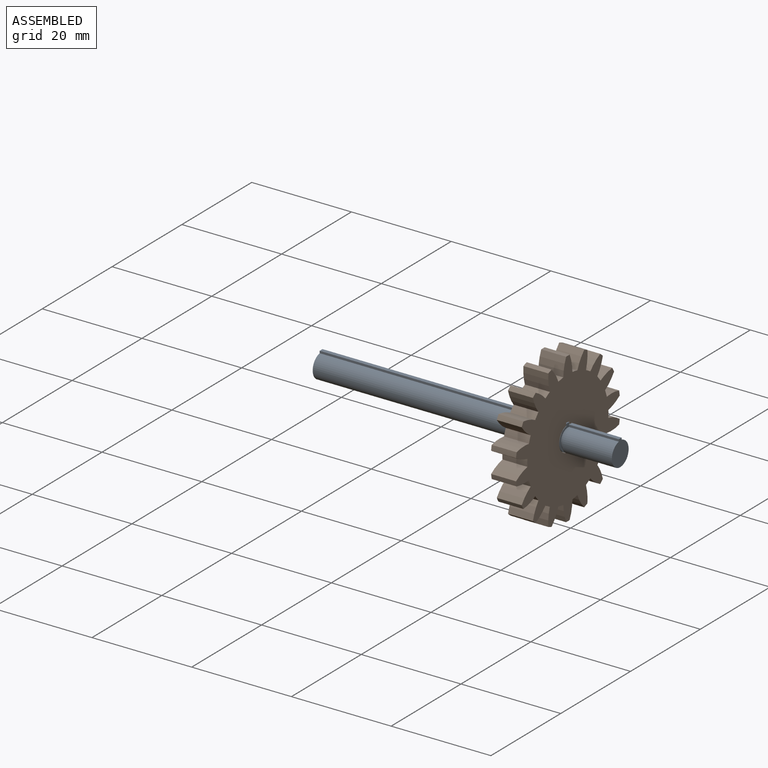
[diagram: assembled view]
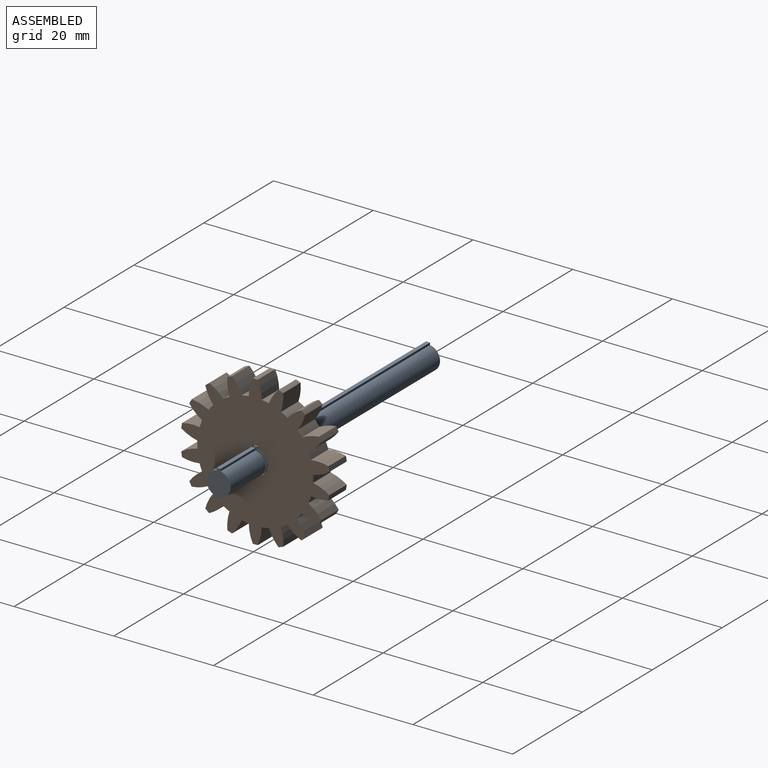
[diagram: assembled view, second angle]
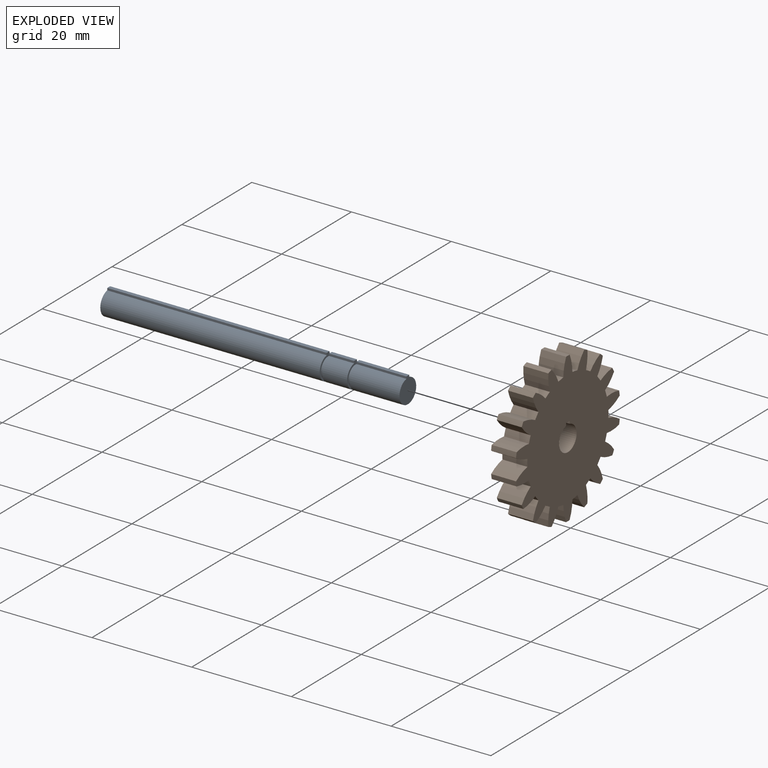
[diagram: exploded view]
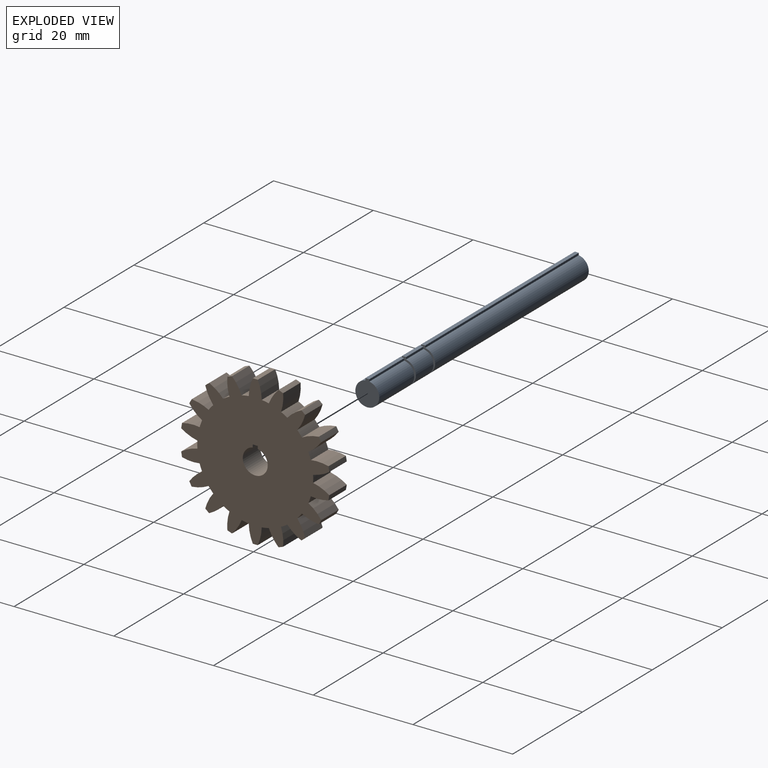
[diagram: exploded view, second angle]
ASSEMBLY  parts=2 mates=3
PART A: 20 faces, bbox 60x4.8x5.2 mm
  f0: cylinder r=2.4mm len=10mm, axis (-1,0,0), area 142.8mm2, adj f1,f2,f3,f6
  f1: plane 5.2x4.8mm, normal (1,0,0), area 18.4mm2, adj f0,f2,f3,f4
  f2: plane 10x0.43mm, normal (0,-1,0), area 4.3mm2, adj f0,f1,f4,f6
  f3: plane 10x0.43mm, normal (0,1,0), area 4.3mm2, adj f0,f1,f4,f6
  f4: plane 10x0.8mm, normal (0,0,1), area 8mm2, adj f1,f2,f3,f6
  f5: plane 5.2x4.8mm, normal (1,0,0), area 5.9mm2, adj f7,f8,f9,f10,f11
  f6: plane 5.2x4.8mm, normal (-1,0,0), area 5.9mm2, adj f0,f2,f3,f4,f7
  f7: cylinder r=2mm len=4mm, axis (-1,0,0), area 6.3mm2, adj f5,f6
  f8: plane 5x0.8mm, normal (0,0,1), area 4mm2, adj f5,f9,f10,f12
  f9: plane 5x0.43mm, normal (0,1,0), area 2.2mm2, adj f5,f8,f11,f12
  f10: plane 5x0.43mm, normal (0,-1,0), area 2.2mm2, adj f5,f8,f11,f12
  f11: cylinder r=2.4mm len=5mm, axis (-1,0,0), area 71.4mm2, adj f5,f9,f10,f12
  f12: plane 5.2x4.8mm, normal (-1,0,0), area 5.9mm2, adj f8,f9,f10,f11,f14
  f13: plane 5.2x4.8mm, normal (1,0,0), area 5.9mm2, adj f14,f16,f17,f18,f19
  f14: cylinder r=2mm len=4mm, axis (-1,0,0), area 6.3mm2, adj f12,f13
  f15: plane 5.2x4.8mm, normal (-1,0,0), area 18.4mm2, adj f16,f17,f18,f19
  f16: plane 44x0.8mm, normal (0,0,1), area 35.2mm2, adj f13,f15,f17,f18
  f17: plane 44x0.43mm, normal (0,1,0), area 19.1mm2, adj f13,f15,f16,f19
  f18: plane 44x0.43mm, normal (0,-1,0), area 19.1mm2, adj f13,f15,f16,f19
  f19: cylinder r=2.4mm len=44mm, axis (-1,0,0), area 628.1mm2, adj f13,f15,f17,f18
PART B: 78 faces, bbox 5x29.7x30 mm
  f0: plane 30x29.7mm, normal (-1,0,0), area 529.2mm2, adj f1,f2,f3,f4,f5,f6,f7,f8
  f1: cylinder r=15mm len=5mm, axis (-1,0,0), area 5mm2, adj f0,f2,f72,f74
  f2: cylinder r=8.62mm len=5mm, axis (-1,0,0), area 17.8mm2, adj f0,f1,f3,f74
  f3: cylinder r=11.62mm len=5mm, axis (-1,0,0), area 7.3mm2, adj f0,f2,f4,f74
  f4: cylinder r=8.62mm len=5mm, axis (-1,0,0), area 17.8mm2, adj f0,f3,f5,f74
  f5: cylinder r=15mm len=5mm, axis (-1,0,0), area 5mm2, adj f0,f4,f6,f74
  f6: cylinder r=8.62mm len=5mm, axis (-1,0,0), area 17.8mm2, adj f0,f5,f7,f74
  f7: cylinder r=11.62mm len=5mm, axis (-1,0,0), area 7.3mm2, adj f0,f6,f8,f74
  f8: cylinder r=8.62mm len=5mm, axis (-1,0,0), area 17.8mm2, adj f0,f7,f9,f74
  f9: cylinder r=15mm len=5mm, axis (-1,0,0), area 5mm2, adj f0,f8,f10,f74
  f10: cylinder r=8.62mm len=5mm, axis (-1,0,0), area 17.8mm2, adj f0,f9,f11,f74
  f11: cylinder r=11.62mm len=5mm, axis (-1,0,0), area 7.3mm2, adj f0,f10,f12,f74
  f12: cylinder r=8.62mm len=5mm, axis (-1,0,0), area 17.8mm2, adj f0,f11,f13,f74
  f13: cylinder r=15mm len=5mm, axis (-1,0,0), area 5mm2, adj f0,f12,f14,f74
  f14: cylinder r=8.62mm len=5mm, axis (-1,0,0), area 17.8mm2, adj f0,f13,f15,f74
  f15: cylinder r=11.62mm len=5mm, axis (-1,0,0), area 7.3mm2, adj f0,f14,f16,f74
  f16: cylinder r=8.62mm len=5mm, axis (-1,0,0), area 17.8mm2, adj f0,f15,f17,f74
  f17: cylinder r=15mm len=5mm, axis (-1,0,0), area 5mm2, adj f0,f16,f18,f74
  f18: cylinder r=8.62mm len=5mm, axis (-1,0,0), area 17.8mm2, adj f0,f17,f19,f74
  f19: cylinder r=11.62mm len=5mm, axis (-1,0,0), area 7.3mm2, adj f0,f18,f20,f74
  f20: cylinder r=8.62mm len=5mm, axis (-1,0,0), area 17.8mm2, adj f0,f19,f21,f74
  f21: cylinder r=15mm len=5mm, axis (-1,0,0), area 5mm2, adj f0,f20,f22,f74
  f22: cylinder r=8.62mm len=5mm, axis (-1,0,0), area 17.8mm2, adj f0,f21,f23,f74
  f23: cylinder r=11.62mm len=5mm, axis (-1,0,0), area 7.3mm2, adj f0,f22,f24,f74
  f24: cylinder r=8.62mm len=5mm, axis (-1,0,0), area 17.8mm2, adj f0,f23,f25,f74
  f25: cylinder r=15mm len=5mm, axis (-1,0,0), area 5mm2, adj f0,f24,f26,f74
  f26: cylinder r=8.62mm len=5mm, axis (-1,0,0), area 17.8mm2, adj f0,f25,f27,f74
  f27: cylinder r=11.62mm len=5mm, axis (-1,0,0), area 7.3mm2, adj f0,f26,f28,f74
  f28: cylinder r=8.62mm len=5mm, axis (-1,0,0), area 17.8mm2, adj f0,f27,f29,f74
  f29: cylinder r=15mm len=5mm, axis (-1,0,0), area 5mm2, adj f0,f28,f30,f74
  f30: cylinder r=8.62mm len=5mm, axis (-1,0,0), area 17.8mm2, adj f0,f29,f31,f74
  f31: cylinder r=11.62mm len=5mm, axis (-1,0,0), area 7.3mm2, adj f0,f30,f32,f74
  f32: cylinder r=8.62mm len=5mm, axis (-1,0,0), area 17.8mm2, adj f0,f31,f33,f74
  f33: cylinder r=15mm len=5mm, axis (-1,0,0), area 5mm2, adj f0,f32,f34,f74
  f34: cylinder r=8.62mm len=5mm, axis (-1,0,0), area 17.8mm2, adj f0,f33,f35,f74
  f35: cylinder r=11.62mm len=5mm, axis (-1,0,0), area 7.3mm2, adj f0,f34,f36,f74
  f36: cylinder r=8.62mm len=5mm, axis (-1,0,0), area 17.8mm2, adj f0,f35,f37,f74
  f37: cylinder r=15mm len=5mm, axis (-1,0,0), area 5mm2, adj f0,f36,f38,f74
  f38: cylinder r=8.62mm len=5mm, axis (-1,0,0), area 17.8mm2, adj f0,f37,f39,f74
  f39: cylinder r=11.62mm len=5mm, axis (-1,0,0), area 7.3mm2, adj f0,f38,f40,f74
  f40: cylinder r=8.62mm len=5mm, axis (-1,0,0), area 17.8mm2, adj f0,f39,f41,f74
  f41: cylinder r=15mm len=5mm, axis (-1,0,0), area 5mm2, adj f0,f40,f42,f74
  f42: cylinder r=8.62mm len=5mm, axis (-1,0,0), area 17.8mm2, adj f0,f41,f43,f74
  f43: cylinder r=11.62mm len=5mm, axis (-1,0,0), area 7.3mm2, adj f0,f42,f44,f74
  f44: cylinder r=8.62mm len=5mm, axis (-1,0,0), area 17.8mm2, adj f0,f43,f45,f74
  f45: cylinder r=15mm len=5mm, axis (-1,0,0), area 5mm2, adj f0,f44,f46,f74
  f46: cylinder r=8.62mm len=5mm, axis (-1,0,0), area 17.8mm2, adj f0,f45,f47,f74
  f47: cylinder r=11.62mm len=5mm, axis (-1,0,0), area 7.3mm2, adj f0,f46,f48,f74
  f48: cylinder r=8.62mm len=5mm, axis (-1,0,0), area 17.8mm2, adj f0,f47,f49,f74
  f49: cylinder r=15mm len=5mm, axis (-1,0,0), area 5mm2, adj f0,f48,f50,f74
  f50: cylinder r=8.62mm len=5mm, axis (-1,0,0), area 17.8mm2, adj f0,f49,f51,f74
  f51: cylinder r=11.62mm len=5mm, axis (-1,0,0), area 7.3mm2, adj f0,f50,f52,f74
  f52: cylinder r=8.62mm len=5mm, axis (-1,0,0), area 17.8mm2, adj f0,f51,f53,f74
  f53: cylinder r=15mm len=5mm, axis (-1,0,0), area 5mm2, adj f0,f52,f54,f74
  f54: cylinder r=8.62mm len=5mm, axis (-1,0,0), area 17.8mm2, adj f0,f53,f55,f74
  f55: cylinder r=11.62mm len=5mm, axis (-1,0,0), area 7.3mm2, adj f0,f54,f56,f74
  f56: cylinder r=8.62mm len=5mm, axis (-1,0,0), area 17.8mm2, adj f0,f55,f57,f74
  f57: cylinder r=15mm len=5mm, axis (-1,0,0), area 5mm2, adj f0,f56,f58,f74
  f58: cylinder r=8.62mm len=5mm, axis (-1,0,0), area 17.8mm2, adj f0,f57,f59,f74
  f59: cylinder r=11.62mm len=5mm, axis (-1,0,0), area 7.3mm2, adj f0,f58,f60,f74
  f60: cylinder r=8.62mm len=5mm, axis (-1,0,0), area 17.8mm2, adj f0,f59,f61,f74
  f61: cylinder r=15mm len=5mm, axis (-1,0,0), area 5mm2, adj f0,f60,f62,f74
  f62: cylinder r=8.62mm len=5mm, axis (-1,0,0), area 17.8mm2, adj f0,f61,f63,f74
  f63: cylinder r=11.62mm len=5mm, axis (-1,0,0), area 7.3mm2, adj f0,f62,f64,f74
  f64: cylinder r=8.62mm len=5mm, axis (-1,0,0), area 17.8mm2, adj f0,f63,f65,f74
  f65: cylinder r=15mm len=5mm, axis (-1,0,0), area 5mm2, adj f0,f64,f66,f74
  f66: cylinder r=8.62mm len=5mm, axis (-1,0,0), area 17.8mm2, adj f0,f65,f67,f74
  f67: cylinder r=11.62mm len=5mm, axis (-1,0,0), area 7.3mm2, adj f0,f66,f68,f74
  f68: cylinder r=8.62mm len=5mm, axis (-1,0,0), area 17.8mm2, adj f0,f67,f69,f74
  f69: cylinder r=15mm len=5mm, axis (-1,0,0), area 5mm2, adj f0,f68,f70,f74
  f70: cylinder r=8.62mm len=5mm, axis (-1,0,0), area 17.8mm2, adj f0,f69,f71,f74
  f71: cylinder r=11.62mm len=5mm, axis (-1,0,0), area 7.3mm2, adj f0,f70,f72,f74
  f72: cylinder r=8.62mm len=5mm, axis (-1,0,0), area 17.8mm2, adj f0,f1,f71,f74
  f73: cylinder r=2.5mm len=5mm, axis (-1,0,0), area 73.5mm2, adj f0,f74,f76,f77
  f74: plane 30x29.7mm, normal (1,0,0), area 529.2mm2, adj f1,f2,f3,f4,f5,f6,f7,f8
  f75: plane 5x1mm, normal (0,0,-1), area 5mm2, adj f0,f74,f76,f77
  f76: plane 5x0.55mm, normal (0,-1,0), area 2.8mm2, adj f0,f73,f74,f75
  f77: plane 5x0.55mm, normal (0,1,0), area 2.8mm2, adj f0,f73,f74,f75
PLACE A t=(-30.05,-0.02,-0.18)mm fixed
PLACE B t=(14.45,-0.02,-0.18)mm
MATE cylindrical B.f71 <-> A.f0  axis (1,0,0) through (19.45,-0.02,-0.18)mm
MATE planar B.f37 <-> A.f5  axis (1,0,0) through (19.45,-0.02,-0.18)mm
MATE parallel B.f76 <-> A.f2  axis (0,-1,0) through (16.95,0.48,2.54)mm
